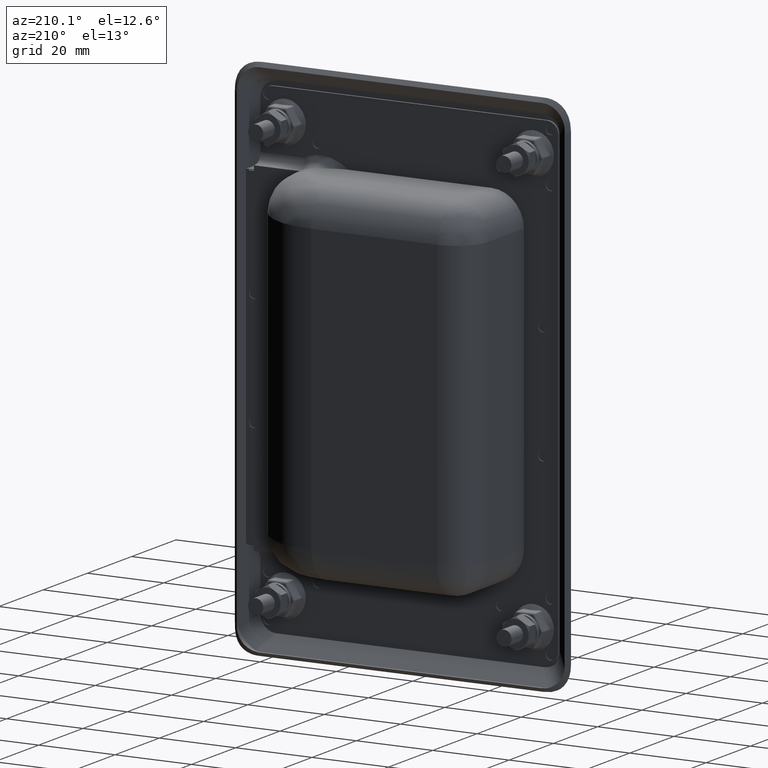
[diagram: clean part render]
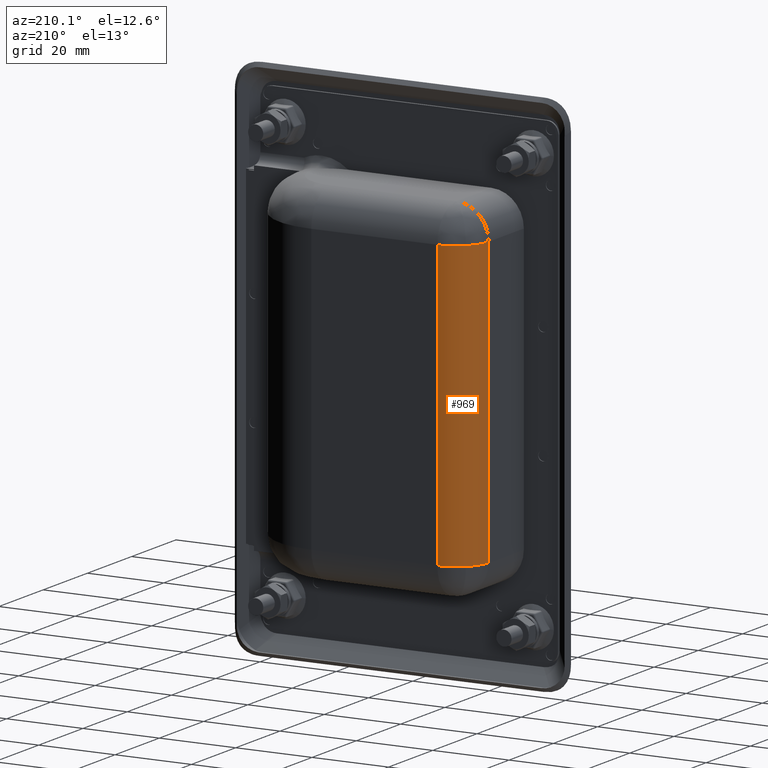
[diagram: same view with one face highlighted and labeled with its STEP entity id]
A machine part, auxiliary view. The second image highlights one B-rep face of the part: STEP entity #969.
In plain terms, the highlighted cylindrical surface (partial cylindrical patch) has radius 8.5 mm, axis along (0, -0, 1).
Its self-contained STEP definition (entity closure, byte-faithful):
#969=ADVANCED_FACE('',(#3957),#3956,.T.);
#3956=CYLINDRICAL_SURFACE('',#8831,8.50000000000E+00);
#3957=FACE_OUTER_BOUND('',#8832,.T.);
#8828=CARTESIAN_POINT('',(-2.14999999991E+01,1.75000000002E+01,3.72499999999E+01));
#8829=DIRECTION('',(9.58904939173E-17,-9.58904939186E-17,1.00000000000E+00));
#8830=DIRECTION('',(1.00000000000E+00,2.08983157577E-15,-9.58904939173E-17));
#8831=AXIS2_PLACEMENT_3D('',#8828,#8829,#8830);
#8832=EDGE_LOOP('',(#12620,#12621,#12622,#12623,#12624,#12625));
#12620=ORIENTED_EDGE('',*,*,#14937,.T.);
#12621=ORIENTED_EDGE('',*,*,#14938,.T.);
#12622=ORIENTED_EDGE('',*,*,#14939,.T.);
#12623=ORIENTED_EDGE('',*,*,#14935,.F.);
#12624=ORIENTED_EDGE('',*,*,#14940,.T.);
#12625=ORIENTED_EDGE('',*,*,#14941,.T.);
#14935=EDGE_CURVE('',#20436,#20443,#20444,.T.);
#14937=EDGE_CURVE('',#20456,#20457,#20458,.T.);
#14938=EDGE_CURVE('',#20457,#20464,#20465,.T.);
#14939=EDGE_CURVE('',#20464,#20443,#20471,.T.);
#14940=EDGE_CURVE('',#20436,#20416,#20477,.T.);
#14941=EDGE_CURVE('',#20416,#20456,#20483,.T.);
#20416=VERTEX_POINT('',#28405);
#20436=VERTEX_POINT('',#28417);
#20443=VERTEX_POINT('',#28434);
#20444=(BOUNDED_CURVE() B_SPLINE_CURVE(3,(#28435,#28436,#28437,#28438,#28439,#28440,#28441),.UNSPECIFIED.,.F.,.F.) B_SPLINE_CURVE_WITH_KNOTS((4,1,1,1,4),(0.00000000000E+00,3.31407201007E-01,5.56197599664E-01,6.68592798993E-01,1.00000000000E+00),.UNSPECIFIED.) CURVE() GEOMETRIC_REPRESENTATION_ITEM() RATIONAL_B_SPLINE_CURVE((1.00000000000E+00,1.00000000000E+00,1.00000000000E+00,1.00000000000E+00,1.00000000000E+00,1.00000000000E+00,1.00000000000E+00)) REPRESENTATION_ITEM('') );
#20456=VERTEX_POINT('',#28446);
#20457=VERTEX_POINT('',#28447);
#20458=CIRCLE('',#28451,8.50000000000E+00);
#20464=VERTEX_POINT('',#28452);
#20465=CIRCLE('',#28456,8.50000000000E+00);
#20471=LINE('',#28457,#28458);
#20477=CIRCLE('',#28463,8.50000000000E+00);
#20483=LINE('',#28464,#28465);
#28405=CARTESIAN_POINT('',(-2.14999999991E+01,2.60000000002E+01,3.72499999999E+01));
#28417=CARTESIAN_POINT('',(-2.75104076391E+01,2.35104076402E+01,3.72499999999E+01));
#28434=CARTESIAN_POINT('',(-2.99999999991E+01,1.75000000002E+01,3.72499999999E+01));
#28435=CARTESIAN_POINT('',(-2.75104076391E+01,2.35104076402E+01,3.72499999999E+01));
#28436=CARTESIAN_POINT('',(-2.80314518948E+01,2.29896530855E+01,3.72499999999E+01));
#28437=CARTESIAN_POINT('',(-2.87923586704E+01,2.19994903900E+01,3.72499999999E+01));
#28438=CARTESIAN_POINT('',(-2.94244925302E+01,2.06448822921E+01,3.72499999999E+01));
#28439=CARTESIAN_POINT('',(-2.98704149970E+01,1.92256556986E+01,3.72499999999E+01));
#28440=CARTESIAN_POINT('',(-3.00003484394E+01,1.82363330472E+01,3.72499999999E+01));
#28441=CARTESIAN_POINT('',(-2.99999999991E+01,1.75000000002E+01,3.72499999999E+01));
#28446=CARTESIAN_POINT('',(-2.14999999991E+01,2.60000000002E+01,-3.72500000002E+01));
#28447=CARTESIAN_POINT('',(-2.75104076391E+01,2.35104076403E+01,-3.72500000002E+01));
#28448=CARTESIAN_POINT('',(-2.14999999991E+01,1.75000000002E+01,-3.72500000002E+01));
#28449=DIRECTION('',(0.00000000000E+00,-0.00000000000E+00,1.00000000000E+00));
#28450=DIRECTION('',(-0.00000000000E+00,-1.00000000000E+00,-0.00000000000E+00));
#28451=AXIS2_PLACEMENT_3D('',#28448,#28449,#28450);
#28452=CARTESIAN_POINT('',(-2.99999999991E+01,1.75000000002E+01,-3.72500000002E+01));
#28453=CARTESIAN_POINT('',(-2.14999999991E+01,1.75000000002E+01,-3.72500000002E+01));
#28454=DIRECTION('',(0.00000000000E+00,0.00000000000E+00,1.00000000000E+00));
#28455=DIRECTION('',(7.07106781186E-01,-7.07106781187E-01,-0.00000000000E+00));
#28456=AXIS2_PLACEMENT_3D('',#28453,#28454,#28455);
#28457=CARTESIAN_POINT('',(-2.99999999991E+01,1.75000000002E+01,-3.72500000002E+01));
#28458=VECTOR('',#28459,7.45000000002E+01);
#28459=DIRECTION('',(0.00000000000E+00,0.00000000000E+00,1.00000000000E+00));
#28460=CARTESIAN_POINT('',(-2.14999999991E+01,1.75000000002E+01,3.72499999999E+01));
#28461=DIRECTION('',(0.00000000000E+00,0.00000000000E+00,-1.00000000000E+00));
#28462=DIRECTION('',(7.07106781187E-01,-7.07106781187E-01,-0.00000000000E+00));
#28463=AXIS2_PLACEMENT_3D('',#28460,#28461,#28462);
#28464=CARTESIAN_POINT('',(-2.14999999991E+01,2.60000000002E+01,3.72499999999E+01));
#28465=VECTOR('',#28466,7.45000000002E+01);
#28466=DIRECTION('',(0.00000000000E+00,0.00000000000E+00,-1.00000000000E+00));